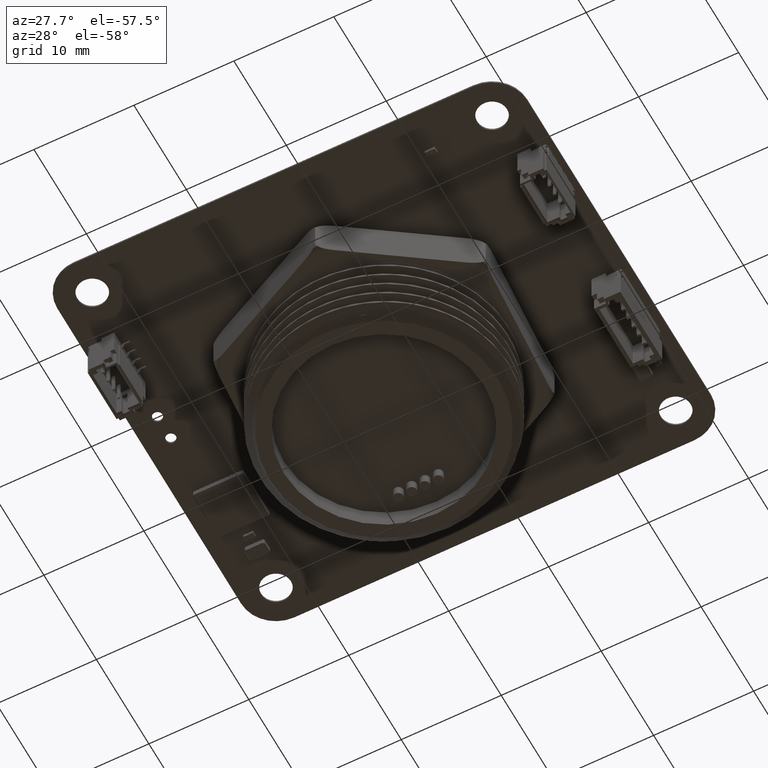
[diagram: clean part render]
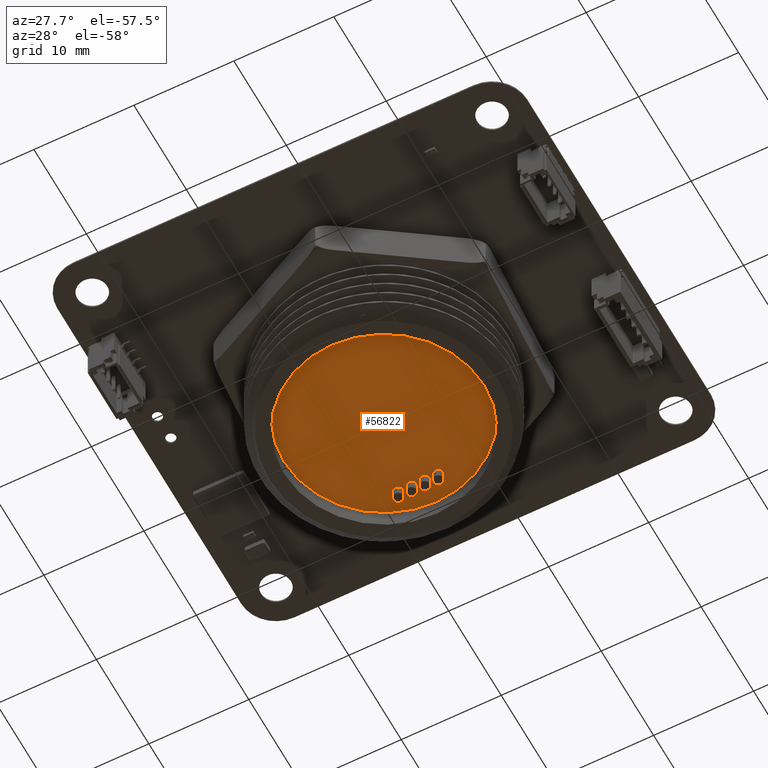
[diagram: same view with one face highlighted and labeled with its STEP entity id]
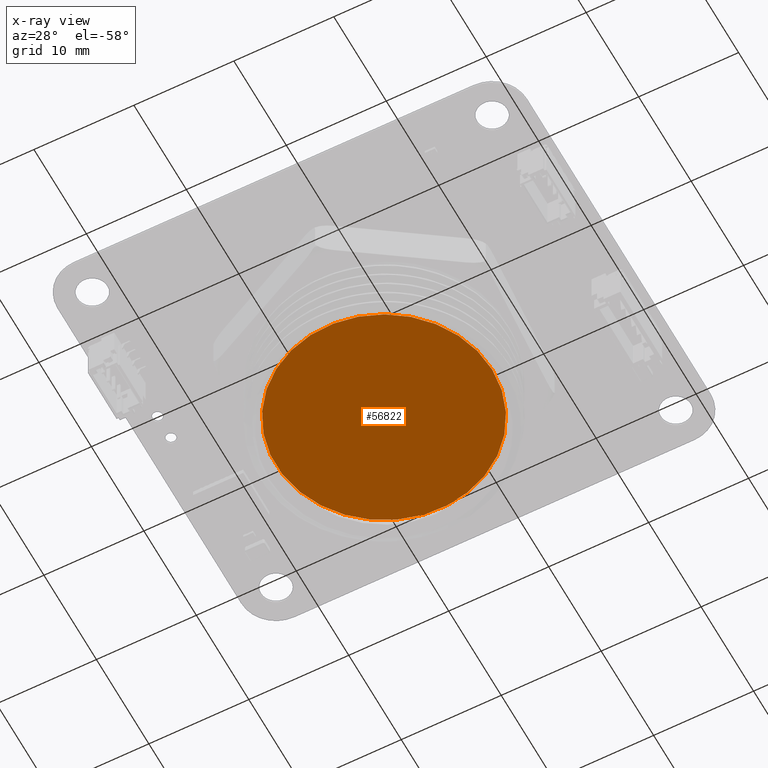
[diagram: x-ray of the same camera — body ghosted, the highlighted face saturated]
A machine part, auxiliary view. The second image highlights one B-rep face of the part: STEP entity #56822.
The next image is the same camera in x-ray: the body ghosted, the highlighted face saturated — about 0% of this face is hidden behind the body in this view.
In plain terms, the highlighted planar face has unit normal (-0, 0, 1).
Its self-contained STEP definition (entity closure, byte-faithful):
#56794 = VERTEX_POINT('',#56795);
#56795 = CARTESIAN_POINT('',(-10.81665398757,2.,1.324658068337E-15));
#56801 = EDGE_CURVE('',#56794,#56794,#56802,.T.);
#56802 = CIRCLE('',#56803,10.816653987573);
#56803 = AXIS2_PLACEMENT_3D('',#56804,#56805,#56806);
#56804 = CARTESIAN_POINT('',(0.,2.,0.));
#56805 = DIRECTION('',(-0.,1.,0.));
#56806 = DIRECTION('',(1.,0.,0.));
#56822 = ADVANCED_FACE('',(#56823),#56826,.F.);
#56823 = FACE_BOUND('',#56824,.T.);
#56824 = EDGE_LOOP('',(#56825));
#56825 = ORIENTED_EDGE('',*,*,#56801,.F.);
#56826 = PLANE('',#56827);
#56827 = AXIS2_PLACEMENT_3D('',#56828,#56829,#56830);
#56828 = CARTESIAN_POINT('',(0.,2.,0.));
#56829 = DIRECTION('',(0.,1.,0.));
#56830 = DIRECTION('',(1.,0.,0.));